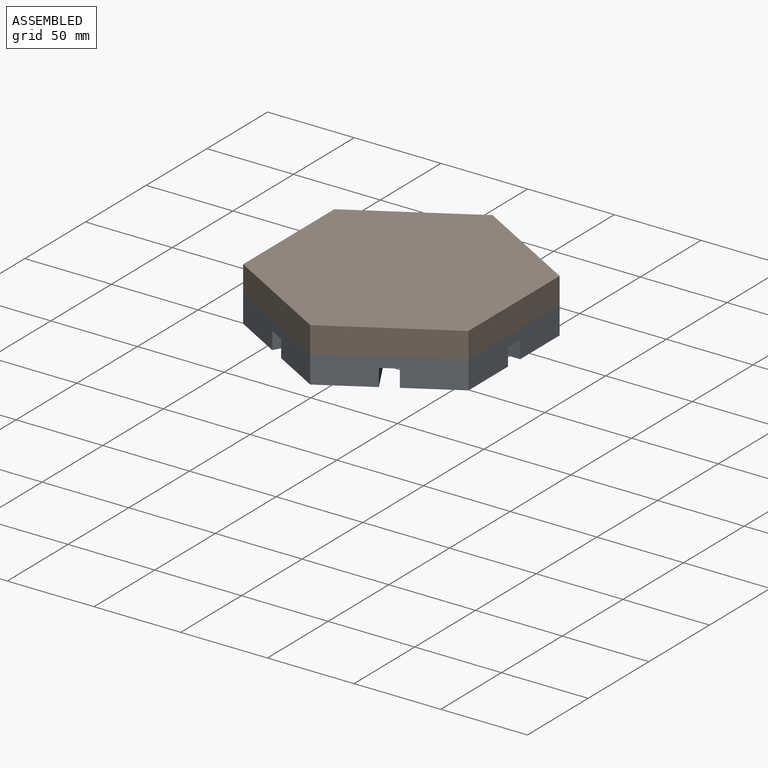
[diagram: assembled view]
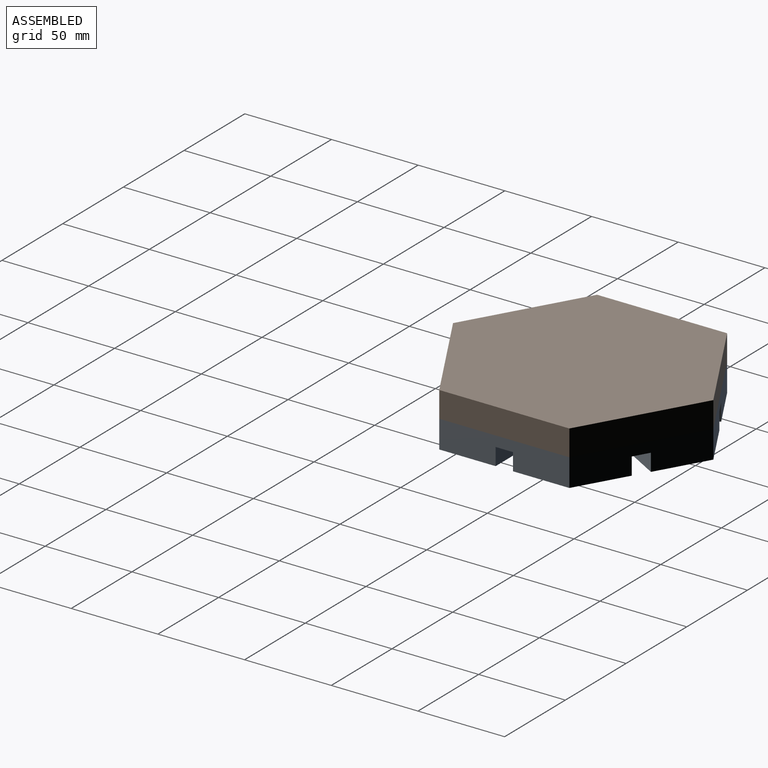
[diagram: assembled view, second angle]
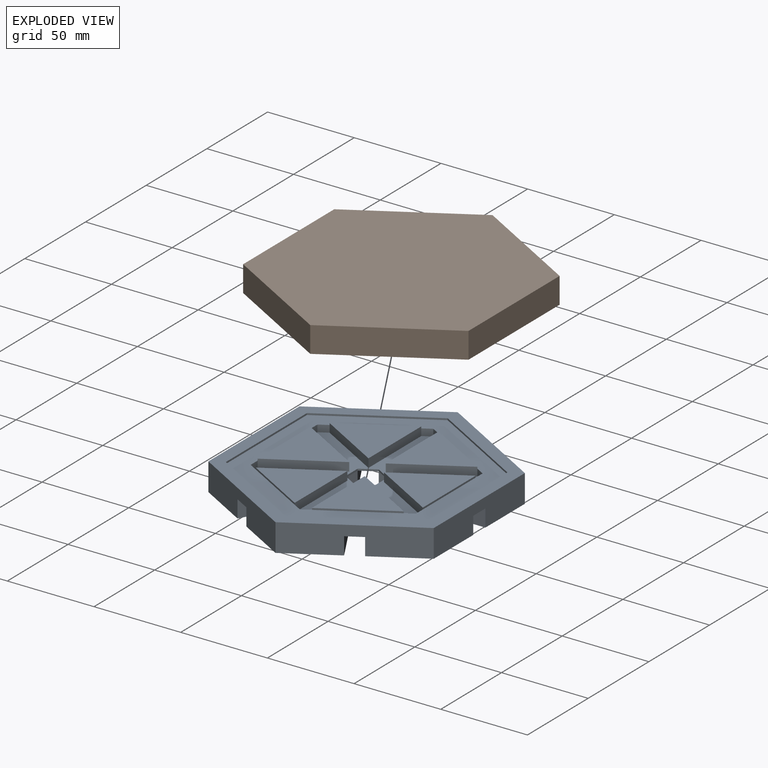
[diagram: exploded view]
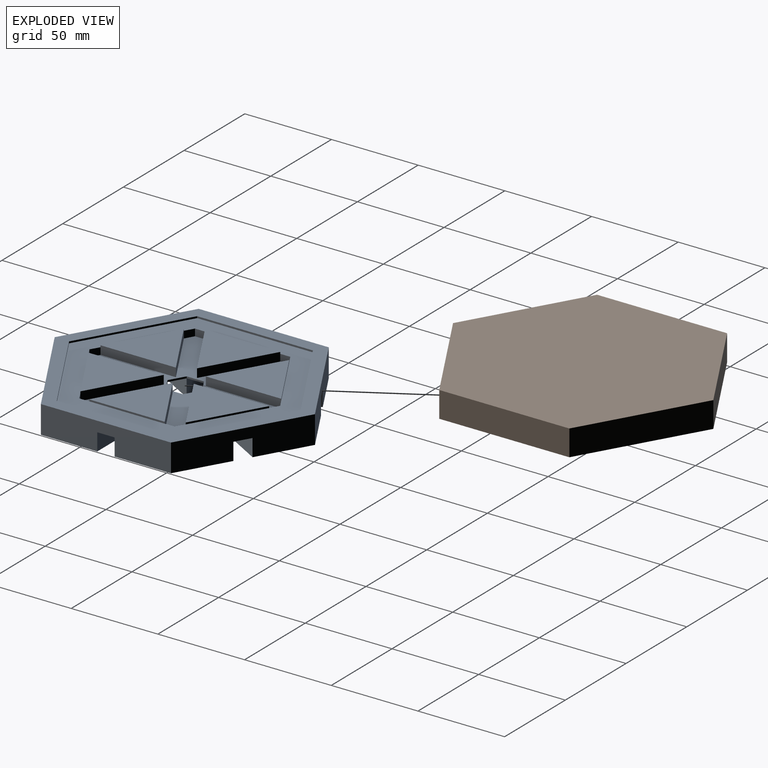
[diagram: exploded view, second angle]
ASSEMBLY  parts=2 mates=3
PART A: 81 faces, bbox 130x150.1x16 mm
  f0: plane 110x95.26mm, normal (0,0,1), area 2693.8mm2, adj f39,f40,f41,f42,f43,f44,f45,f46
  f1: plane 56.34x10mm, normal (0,0,-1), area 563.4mm2, adj f26,f66,f67,f75
  f2: plane 53.79x36.83mm, normal (0,0,-1), area 563.4mm2, adj f25,f68,f69,f76
  f3: plane 53.79x36.83mm, normal (0,0,-1), area 563.4mm2, adj f24,f70,f71,f77
  f4: plane 56.34x10mm, normal (0,0,-1), area 563.4mm2, adj f29,f72,f73,f78
  f5: plane 53.79x36.83mm, normal (0,0,-1), area 563.4mm2, adj f28,f63,f74,f79
  f6: plane 53.79x36.83mm, normal (0,0,-1), area 563.4mm2, adj f27,f64,f65,f80
  f7: plane 65.06x56.34mm, normal (0,0,-1), area 1832.6mm2, adj f27,f28,f63,f64
  f8: plane 56.34x48.79mm, normal (0,0,-1), area 1832.6mm2, adj f26,f27,f65,f66
  f9: plane 56.34x48.79mm, normal (0,0,-1), area 1832.6mm2, adj f25,f26,f67,f68
  f10: plane 65.06x56.34mm, normal (0,0,-1), area 1832.6mm2, adj f24,f25,f69,f70
  f11: plane 56.34x48.79mm, normal (0,0,-1), area 1832.6mm2, adj f24,f29,f71,f72
  f12: plane 56.34x48.79mm, normal (0,0,-1), area 1832.6mm2, adj f28,f29,f73,f74
  f13: plane 43.45x1mm, normal (-1,0,0), area 43.5mm2, adj f37,f38,f59,f60
  f14: plane 37.63x21.73mm, normal (-0.5,-0.87,0), area 43.5mm2, adj f19,f37,f39,f40
  f15: plane 37.63x21.73mm, normal (0.5,-0.87,0), area 43.5mm2, adj f20,f37,f43,f44
  f16: plane 43.45x1mm, normal (1,0,0), area 43.5mm2, adj f21,f37,f47,f48
  f17: plane 37.63x21.73mm, normal (0.5,0.87,0), area 43.5mm2, adj f22,f37,f51,f52
  f18: plane 37.63x21.73mm, normal (-0.5,0.87,0), area 43.5mm2, adj f23,f37,f55,f56
  f19: plane 43.45x37.63mm, normal (0,0,1), area 817.6mm2, adj f14,f39,f40
  f20: plane 43.45x37.63mm, normal (0,0,1), area 817.6mm2, adj f15,f43,f44
  f21: plane 43.45x37.63mm, normal (0,0,1), area 817.6mm2, adj f16,f47,f48
  f22: plane 43.45x37.63mm, normal (0,0,1), area 817.6mm2, adj f17,f51,f52
  f23: plane 43.45x37.63mm, normal (0,0,1), area 817.6mm2, adj f18,f55,f56
  f24: plane 65x37.53mm, normal (0.5,0.87,0), area 1100.9mm2, adj f3,f10,f11,f25,f29,f36,f70,f71
  f25: plane 65x37.53mm, normal (-0.5,0.87,0), area 1100.9mm2, adj f2,f9,f10,f24,f26,f36,f68,f69
  f26: plane 75.06x16mm, normal (-1,0,0), area 1100.9mm2, adj f1,f8,f9,f25,f27,f36,f66,f67
  f27: plane 65x37.53mm, normal (-0.5,-0.87,0), area 1100.9mm2, adj f6,f7,f8,f26,f28,f36,f64,f65
  f28: plane 65x37.53mm, normal (0.5,-0.87,0), area 1100.9mm2, adj f5,f7,f12,f27,f29,f36,f63,f74
  f29: plane 75.06x16mm, normal (1,0,0), area 1100.9mm2, adj f4,f11,f12,f24,f28,f36,f72,f73
  f30: plane 57.83x33.39mm, normal (0.5,0.87,0), area 66.8mm2, adj f31,f35,f36,f37
  f31: plane 66.78x1mm, normal (1,0,0), area 66.8mm2, adj f30,f32,f36,f37
  f32: plane 57.83x33.39mm, normal (0.5,-0.87,0), area 66.8mm2, adj f31,f33,f36,f37
  f33: plane 57.83x33.39mm, normal (-0.5,-0.87,0), area 66.8mm2, adj f32,f34,f36,f37
  f34: plane 66.78x1mm, normal (-1,0,0), area 66.8mm2, adj f33,f35,f36,f37
  f35: plane 57.83x33.39mm, normal (-0.5,0.87,0), area 66.8mm2, adj f30,f34,f36,f37
  f36: plane 150.11x130mm, normal (0,0,1), area 3050.2mm2, adj f24,f25,f26,f27,f28,f29,f30,f31
  f37: plane 133.56x115.66mm, normal (0,0,1), area 3726.4mm2, adj f13,f14,f15,f16,f17,f18,f30,f31
  f38: plane 43.45x37.63mm, normal (0,0,1), area 817.6mm2, adj f13,f59,f60
  f39: plane 37.63x21.73mm, normal (-0.5,0.87,0), area 217.3mm2, adj f0,f14,f19,f40,f62
  f40: plane 43.45x5mm, normal (1,0,0), area 217.3mm2, adj f0,f14,f19,f39,f41
  f41: plane 5x4mm, normal (0.5,0.87,0), area 23.1mm2, adj f0,f37,f40,f42
  f42: plane 5x4mm, normal (-0.5,0.87,0), area 23.1mm2, adj f0,f37,f41,f43
  f43: plane 43.45x5mm, normal (-1,0,0), area 217.3mm2, adj f0,f15,f20,f42,f44
  f44: plane 37.63x21.73mm, normal (0.5,0.87,0), area 217.3mm2, adj f0,f15,f20,f43,f45
  f45: plane 5x4mm, normal (-0.5,0.87,0), area 23.1mm2, adj f0,f37,f44,f46
  f46: plane 5.77x4mm, normal (-1,0,0), area 23.1mm2, adj f0,f37,f45,f47
  f47: plane 37.63x21.73mm, normal (-0.5,-0.87,0), area 217.3mm2, adj f0,f16,f21,f46,f48
  f48: plane 37.63x21.73mm, normal (-0.5,0.87,0), area 217.3mm2, adj f0,f16,f21,f47,f49
  f49: plane 5.77x4mm, normal (-1,0,0), area 23.1mm2, adj f0,f37,f48,f50
  f50: plane 5x4mm, normal (-0.5,-0.87,0), area 23.1mm2, adj f0,f37,f49,f51
  f51: plane 37.63x21.73mm, normal (0.5,-0.87,0), area 217.3mm2, adj f0,f17,f22,f50,f52
  f52: plane 43.45x5mm, normal (-1,0,0), area 217.3mm2, adj f0,f17,f22,f51,f53
  f53: plane 5x4mm, normal (-0.5,-0.87,0), area 23.1mm2, adj f0,f37,f52,f54
  f54: plane 5x4mm, normal (0.5,-0.87,0), area 23.1mm2, adj f0,f37,f53,f55
  f55: plane 43.45x5mm, normal (1,0,0), area 217.3mm2, adj f0,f18,f23,f54,f56
  f56: plane 37.63x21.73mm, normal (-0.5,-0.87,0), area 217.3mm2, adj f0,f18,f23,f55,f57
  f57: plane 5x4mm, normal (0.5,-0.87,0), area 23.1mm2, adj f0,f37,f56,f58
  f58: plane 5.77x4mm, normal (1,0,0), area 23.1mm2, adj f0,f37,f57,f59
  f59: plane 37.63x21.73mm, normal (0.5,0.87,0), area 217.3mm2, adj f0,f13,f38,f58,f60
  f60: plane 37.63x21.73mm, normal (0.5,-0.87,0), area 217.3mm2, adj f0,f13,f38,f59,f61
  f61: plane 5.77x4mm, normal (1,0,0), area 23.1mm2, adj f0,f37,f60,f62
  f62: plane 5x4mm, normal (0.5,0.87,0), area 23.1mm2, adj f0,f37,f39,f61
  f63: plane 48.79x28.17mm, normal (0.87,0.5,0), area 563.4mm2, adj f5,f7,f28,f64
  f64: plane 48.79x28.17mm, normal (-0.87,0.5,0), area 563.4mm2, adj f6,f7,f27,f63
  f65: plane 48.79x28.17mm, normal (0.87,-0.5,0), area 563.4mm2, adj f6,f8,f27,f66
  f66: plane 56.34x10mm, normal (0,1,0), area 563.4mm2, adj f1,f8,f26,f65
  f67: plane 56.34x10mm, normal (0,-1,0), area 563.4mm2, adj f1,f9,f26,f68
  f68: plane 48.79x28.17mm, normal (0.87,0.5,0), area 563.4mm2, adj f2,f9,f25,f67
  f69: plane 48.79x28.17mm, normal (-0.87,-0.5,0), area 563.4mm2, adj f2,f10,f25,f70
  f70: plane 48.79x28.17mm, normal (0.87,-0.5,0), area 563.4mm2, adj f3,f10,f24,f69
  f71: plane 48.79x28.17mm, normal (-0.87,0.5,0), area 563.4mm2, adj f3,f11,f24,f72
  f72: plane 56.34x10mm, normal (0,-1,0), area 563.4mm2, adj f4,f11,f29,f71
  f73: plane 56.34x10mm, normal (0,1,0), area 563.4mm2, adj f4,f12,f29,f74
  f74: plane 48.79x28.17mm, normal (-0.87,-0.5,0), area 563.4mm2, adj f5,f12,f28,f73
  f75: plane 10x1mm, normal (1,0,0), area 10mm2, adj f0,f1,f76,f80
  f76: plane 8.66x5mm, normal (0.5,-0.87,0), area 10mm2, adj f0,f2,f75,f77
  f77: plane 8.66x5mm, normal (-0.5,-0.87,0), area 10mm2, adj f0,f3,f76,f78
  f78: plane 10x1mm, normal (-1,0,0), area 10mm2, adj f0,f4,f77,f79
  f79: plane 8.66x5mm, normal (-0.5,0.87,0), area 10mm2, adj f0,f5,f78,f80
  f80: plane 8.66x5mm, normal (0.5,0.87,0), area 10mm2, adj f0,f6,f75,f79
PART B: 15 faces, bbox 130x150.1x15 mm
  f0: plane 75.06x15mm, normal (-1,0,0), area 1125.8mm2, adj f1,f5,f6,f13
  f1: plane 65x37.53mm, normal (-0.5,-0.87,0), area 1125.8mm2, adj f0,f2,f6,f13
  f2: plane 65x37.53mm, normal (0.5,-0.87,0), area 1125.8mm2, adj f1,f3,f6,f13
  f3: plane 75.06x15mm, normal (1,0,0), area 1125.8mm2, adj f2,f4,f6,f13
  f4: plane 65x37.53mm, normal (0.5,0.87,0), area 1125.8mm2, adj f3,f5,f6,f13
  f5: plane 65x37.53mm, normal (-0.5,0.87,0), area 1125.8mm2, adj f0,f4,f6,f13
  f6: plane 150.11x130mm, normal (0,0,-1), area 14635.8mm2, adj f0,f1,f2,f3,f4,f5
  f7: plane 60x34.64mm, normal (0.5,0.87,0), area 346.4mm2, adj f8,f12,f13,f14
  f8: plane 69.28x5mm, normal (1,0,0), area 346.4mm2, adj f7,f9,f13,f14
  f9: plane 60x34.64mm, normal (0.5,-0.87,0), area 346.4mm2, adj f8,f10,f13,f14
  f10: plane 60x34.64mm, normal (-0.5,-0.87,0), area 346.4mm2, adj f9,f11,f13,f14
  f11: plane 69.28x5mm, normal (-1,0,0), area 346.4mm2, adj f10,f12,f13,f14
  f12: plane 60x34.64mm, normal (-0.5,0.87,0), area 346.4mm2, adj f7,f11,f13,f14
  f13: plane 150.11x130mm, normal (0,0,1), area 2165.1mm2, adj f0,f1,f2,f3,f4,f5,f7,f8
  f14: plane 138.56x120mm, normal (0,0,1), area 12470.8mm2, adj f7,f8,f9,f10,f11,f12
PLACE A t=(-55,31.75,0)mm
PLACE B rot(axis=(1,0,0),180deg) t=(-55,31.75,16)mm
MATE planar B.f4 <-> A.f28  axis (0.5,-0.87,0) through (-22.5,-24.54,8.5)mm
MATE planar B.f3 <-> A.f29  axis (1,0,0) through (10,31.75,16)mm
MATE planar B.f13 <-> A.f20  axis (0,0,-1) through (10,69.28,1)mm
